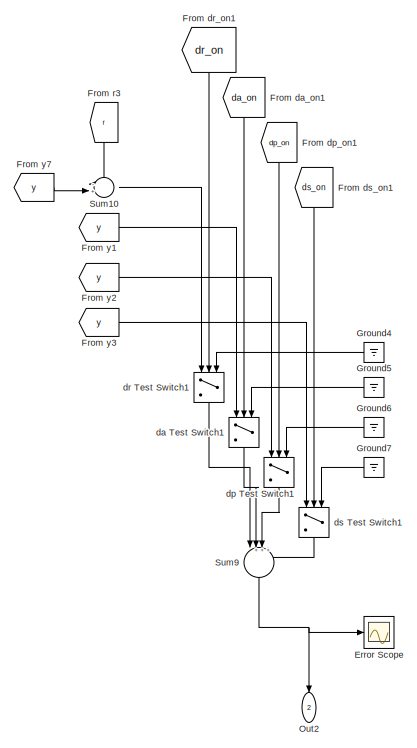
[diagram: root canvas - part 1/2, right side, full height]
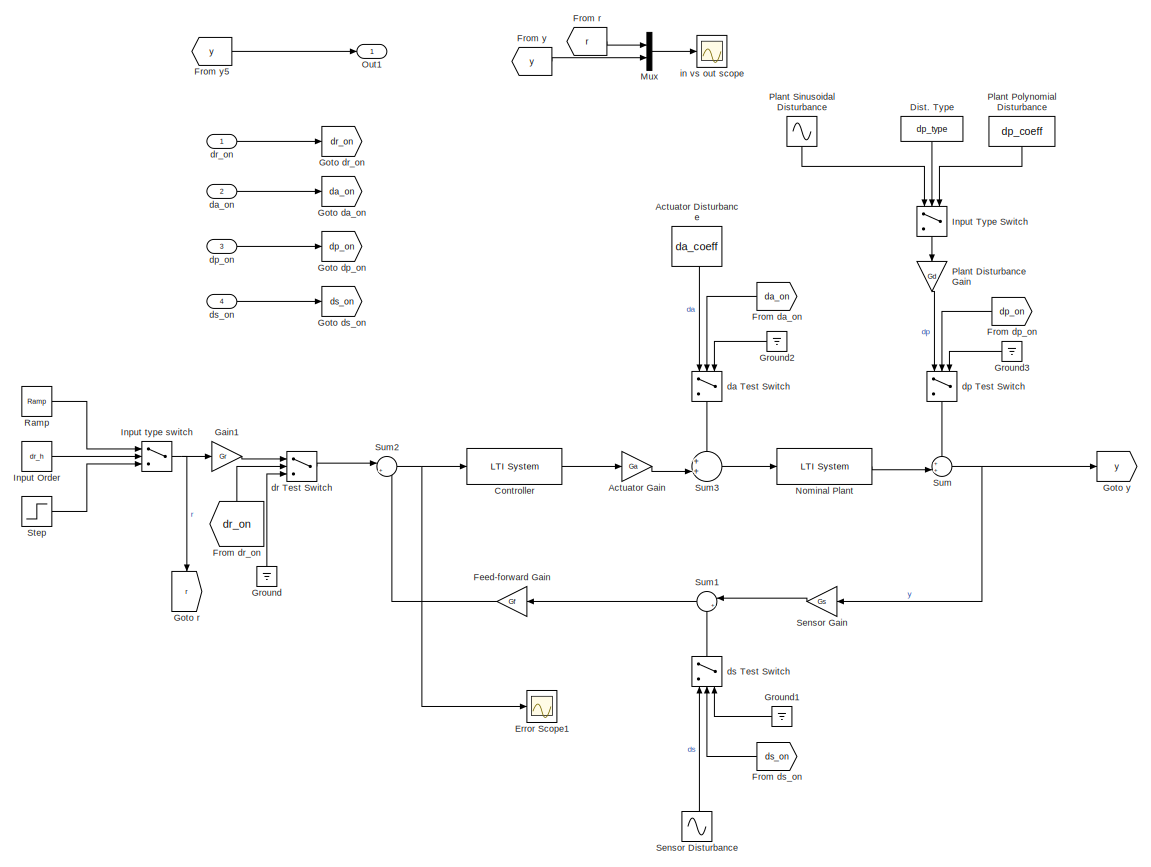
[diagram: root canvas - part 2/2, center side, full height]
MODEL system_model
KIND model
BLOCK [Constant] Actuator Disturbance
  SID = 21
  Value = da_coeff
BLOCK [Gain] Actuator Gain
  Gain = Ga
  OutDataTypeMode = Inherit via internal rule
  OutDataTypeStr = Inherit: Inherit via internal rule
  ParamDataTypeStr = Inherit: Inherit via internal rule
  ParameterDataTypeMode = Inherit via internal rule
  SID = 10
  SaturateOnIntegerOverflow = off
BLOCK [Reference] Controller  REF=cstblocks/LTI System
  FunctionWithSeparateData = off
  IC = []
  Ports = [1, 1]
  RTWMemSecDataConstants = Inherit from model
  RTWMemSecDataInternal = Inherit from model
  RTWMemSecDataParameters = Inherit from model
  RTWMemSecFuncExecute = Inherit from model
  RTWMemSecFuncInitTerm = Inherit from model
  SID = 1
  ShowPortLabels = FromPortIcon
  SourceBlock = cstblocks/LTI System
  SourceType = LTI Block
  SystemSampleTime = -1
  sys = Gcmod
BLOCK [Constant] Dist. Type
  SID = 38
  Value = dp_type
BLOCK [Scope] Error Scope
  DataFormat = StructureWithTime
  Floating = off
  LimitDataPoints = off
  NumInputPorts = 1
  Ports = [1]
  SID = 109
  SampleInput = on
  SampleTime = 0
  SaveName = ScopeData3
  TimeRange = 0.5
  YMax = 2.5
  YMin = 0
BLOCK [Scope] Error Scope1
  DataFormat = StructureWithTime
  Floating = off
  LimitDataPoints = off
  NumInputPorts = 1
  Ports = [1]
  SID = 178
  SampleInput = on
  SampleTime = 0
  SaveName = ScopeData1
  TimeRange = 0.5
  YMax = 2.5
  YMin = 0
BLOCK [Gain] Feed-forward Gain
  Gain = Gf
  OutDataTypeMode = Inherit via internal rule
  OutDataTypeStr = Inherit: Inherit via internal rule
  ParamDataTypeStr = Inherit: Inherit via internal rule
  ParameterDataTypeMode = Inherit via internal rule
  SID = 13
  SaturateOnIntegerOverflow = off
BLOCK [From] From da_on
  GotoTag = da_on
  SID = 97
BLOCK [From] From da_on1
  GotoTag = da_on
  SID = 117
BLOCK [From] From dp_on
  GotoTag = dp_on
  SID = 98
BLOCK [From] From dp_on1
  GotoTag = dp_on
  SID = 118
BLOCK [From] From dr_on
  GotoTag = dr_on
  SID = 95
BLOCK [From] From dr_on1
  GotoTag = dr_on
  SID = 116
BLOCK [From] From ds_on
  GotoTag = ds_on
  SID = 96
BLOCK [From] From ds_on1
  GotoTag = ds_on
  SID = 119
BLOCK [From] From r
  GotoTag = r
  SID = 52
BLOCK [From] From r3
  GotoTag = r
  SID = 174
BLOCK [From] From y
  GotoTag = y
  SID = 54
BLOCK [From] From y1
  GotoTag = y
  SID = 127
BLOCK [From] From y2
  GotoTag = y
  SID = 128
BLOCK [From] From y3
  GotoTag = y
  SID = 130
BLOCK [From] From y5
  GotoTag = y
  SID = 79
BLOCK [From] From y7
  GotoTag = y
  SID = 172
BLOCK [Gain] Gain1
  Gain = Gr
  OutDataTypeMode = Inherit via internal rule
  OutDataTypeStr = Inherit: Inherit via internal rule
  ParamDataTypeStr = Inherit: Inherit via internal rule
  ParameterDataTypeMode = Inherit via internal rule
  SID = 11
  SaturateOnIntegerOverflow = off
BLOCK [Goto] Goto da_on
  GotoTag = da_on
  SID = 100
  TagVisibility = local
BLOCK [Goto] Goto dp_on
  GotoTag = dp_on
  SID = 101
  TagVisibility = local
BLOCK [Goto] Goto dr_on
  GotoTag = dr_on
  SID = 99
  TagVisibility = local
BLOCK [Goto] Goto ds_on
  GotoTag = ds_on
  SID = 102
  TagVisibility = local
BLOCK [Goto] Goto r
  GotoTag = r
  SID = 51
  TagVisibility = local
BLOCK [Goto] Goto y
  GotoTag = y
  SID = 53
  TagVisibility = local
BLOCK [Ground] Ground
  SID = 136
BLOCK [Ground] Ground1
  SID = 137
BLOCK [Ground] Ground2
  SID = 138
BLOCK [Ground] Ground3
  SID = 139
BLOCK [Ground] Ground4
  SID = 140
BLOCK [Ground] Ground5
  SID = 141
BLOCK [Ground] Ground6
  SID = 142
BLOCK [Ground] Ground7
  SID = 143
BLOCK [Constant] Input Order
  SID = 32
  Value = dr_h
BLOCK [Switch] Input Type Switch
  InputSameDT = off
  SID = 30
  SaturateOnIntegerOverflow = off
  Threshold = 2
BLOCK [Switch] Input type switch
  InputSameDT = off
  SID = 26
  SaturateOnIntegerOverflow = off
  Threshold = 1
BLOCK [Mux] Mux
  DisplayOption = bar
  Inputs = 2
  Ports = [2, 1]
  SID = 23
BLOCK [Reference] Nominal Plant  REF=cstblocks/LTI System
  FunctionWithSeparateData = off
  IC = []
  Ports = [1, 1]
  RTWMemSecDataConstants = Inherit from model
  RTWMemSecDataInternal = Inherit from model
  RTWMemSecDataParameters = Inherit from model
  RTWMemSecFuncExecute = Inherit from model
  RTWMemSecFuncInitTerm = Inherit from model
  SID = 4
  ShowPortLabels = FromPortIcon
  SourceBlock = cstblocks/LTI System
  SourceType = LTI Block
  SystemSampleTime = -1
  sys = Gp_nominal
BLOCK [Outport] Out1
  IconDisplay = Port number
  OutDataType = fixdt(1, 16)
  OutScaling = 2^0
  SID = 80
BLOCK [Outport] Out2
  IconDisplay = Port number
  OutDataType = fixdt(1, 16)
  OutScaling = 2^0
  Port = 2
  SID = 131
BLOCK [Gain] Plant Disturbance Gain
  Gain = Gd
  OutDataTypeMode = Inherit via internal rule
  OutDataTypeStr = Inherit: Inherit via internal rule
  ParamDataTypeStr = Inherit: Inherit via internal rule
  ParameterDataTypeMode = Inherit via internal rule
  SID = 18
  SaturateOnIntegerOverflow = off
BLOCK [Constant] Plant Polynomial Disturbance
  SID = 24
  Value = dp_coeff
BLOCK [Sin] Plant Sinusoidal Disturbance
  Amplitude = dp_coeff
  Bias = 0
  Frequency = dp_freq
  Offset = 0
  Phase = 0
  Ports = [0, 1]
  SID = 20
  SampleTime = 0
  Samples = 10
BLOCK [Reference] Ramp  REF=simulink/Sources/Ramp
  FunctionWithSeparateData = off
  Ports = [0, 1]
  RTWMemSecDataConstants = Inherit from model
  RTWMemSecDataInternal = Inherit from model
  RTWMemSecDataParameters = Inherit from model
  RTWMemSecFuncExecute = Inherit from model
  RTWMemSecFuncInitTerm = Inherit from model
  SID = 22
  ShowPortLabels = FromPortIcon
  SourceBlock = simulink/Sources/Ramp
  SourceType = Ramp
  SystemSampleTime = -1
  VectorParams1D = on
  X0 = 0
  slope = dr_coeff
  start = 0
BLOCK [Sin] Sensor Disturbance
  Amplitude = ds_coeff
  Bias = 0
  Frequency = ds_freq
  Offset = 0
  Phase = 0
  Ports = [0, 1]
  SID = 19
  SampleTime = 0
  Samples = 10
BLOCK [Gain] Sensor Gain
  Gain = Gs
  OutDataTypeMode = Inherit via internal rule
  OutDataTypeStr = Inherit: Inherit via internal rule
  ParamDataTypeStr = Inherit: Inherit via internal rule
  ParameterDataTypeMode = Inherit via internal rule
  SID = 12
  SaturateOnIntegerOverflow = off
BLOCK [Step] Step
  After = dr_coeff
  SID = 9
  SampleTime = 0
  Time = 0
BLOCK [Sum] Sum
  IconShape = round
  InputSameDT = off
  Inputs = ++|
  OutDataTypeMode = Inherit via internal rule
  OutDataTypeStr = Inherit: Inherit via internal rule
  Ports = [2, 1]
  SID = 14
  SaturateOnIntegerOverflow = off
BLOCK [Sum] Sum1
  IconShape = round
  InputSameDT = off
  Inputs = |++
  OutDataTypeMode = Inherit via internal rule
  OutDataTypeStr = Inherit: Inherit via internal rule
  Ports = [2, 1]
  SID = 15
  SaturateOnIntegerOverflow = off
BLOCK [Sum] Sum10
  IconShape = round
  InputSameDT = off
  Inputs = -+|
  OutDataTypeMode = Inherit via internal rule
  OutDataTypeStr = Inherit: Inherit via internal rule
  Ports = [2, 1]
  SID = 173
  SaturateOnIntegerOverflow = off
BLOCK [Sum] Sum2
  IconShape = round
  InputSameDT = off
  Inputs = |+-
  OutDataTypeMode = Inherit via internal rule
  OutDataTypeStr = Inherit: Inherit via internal rule
  Ports = [2, 1]
  SID = 16
  SaturateOnIntegerOverflow = off
BLOCK [Sum] Sum3
  IconShape = round
  InputSameDT = off
  Inputs = ++|
  OutDataTypeMode = Inherit via internal rule
  OutDataTypeStr = Inherit: Inherit via internal rule
  Ports = [2, 1]
  SID = 17
  SaturateOnIntegerOverflow = off
BLOCK [Sum] Sum9
  IconShape = round
  InputSameDT = off
  Inputs = |++++
  OutDataType = fixdt(1, 16)
  OutDataTypeMode = Inherit via internal rule
  OutDataTypeStr = Inherit: Inherit via internal rule
  OutScaling = 2^0
  Ports = [4, 1]
  SID = 132
  SaturateOnIntegerOverflow = off
BLOCK [Switch] da Test Switch
  InputSameDT = off
  SID = 90
  SaturateOnIntegerOverflow = off
  Threshold = 1
BLOCK [Switch] da Test Switch1
  InputSameDT = off
  SID = 113
  SaturateOnIntegerOverflow = off
  Threshold = 1
BLOCK [Inport] da_on
  IconDisplay = Port number
  OutDataType = fixdt(1, 16)
  OutScaling = 2^0
  Port = 2
  SID = 106
BLOCK [Switch] dp Test Switch
  InputSameDT = off
  SID = 91
  SaturateOnIntegerOverflow = off
  Threshold = 1
BLOCK [Switch] dp Test Switch1
  InputSameDT = off
  SID = 114
  SaturateOnIntegerOverflow = off
  Threshold = 1
BLOCK [Inport] dp_on
  IconDisplay = Port number
  OutDataType = fixdt(1, 16)
  OutScaling = 2^0
  Port = 3
  SID = 105
BLOCK [Switch] dr Test Switch
  InputSameDT = off
  SID = 88
  SaturateOnIntegerOverflow = off
  Threshold = 1
BLOCK [Switch] dr Test Switch1
  InputSameDT = off
  SID = 112
  SaturateOnIntegerOverflow = off
  Threshold = 1
BLOCK [Inport] dr_on
  IconDisplay = Port number
  OutDataType = fixdt(1, 16)
  OutScaling = 2^0
  SID = 103
BLOCK [Switch] ds Test Switch
  InputSameDT = off
  SID = 89
  SaturateOnIntegerOverflow = off
  Threshold = 1
BLOCK [Switch] ds Test Switch1
  InputSameDT = off
  SID = 115
  SaturateOnIntegerOverflow = off
  Threshold = 1
BLOCK [Inport] ds_on
  IconDisplay = Port number
  OutDataType = fixdt(1, 16)
  OutScaling = 2^0
  Port = 4
  SID = 104
BLOCK [Scope] in vs out scope
  DataFormat = StructureWithTime
  Floating = off
  LimitDataPoints = off
  NumInputPorts = 1
  Ports = [1]
  SID = 8
  SampleInput = on
  SampleTime = 0
  TimeRange = 0.5
  YMax = 8.3
  YMin = 7.45
LINE Actuator Disturbance:1 -> da Test Switch:1
LINE Actuator Gain:1 -> Sum3:2
LINE Controller:1 -> Actuator Gain:1
LINE Dist. Type:1 -> Input Type Switch:2
LINE Feed-forward Gain:1 -> Sum2:2
LINE From da_on1:1 -> da Test Switch1:2
LINE From da_on:1 -> da Test Switch:2
LINE From dp_on1:1 -> dp Test Switch1:2
LINE From dp_on:1 -> dp Test Switch:2
LINE From dr_on1:1 -> dr Test Switch1:2
LINE From dr_on:1 -> dr Test Switch:2
LINE From ds_on1:1 -> ds Test Switch1:2
LINE From ds_on:1 -> ds Test Switch:2
LINE From r3:1 -> Sum10:1
LINE From r:1 -> Mux:1
LINE From y1:1 -> da Test Switch1:1
LINE From y2:1 -> dp Test Switch1:1
LINE From y3:1 -> ds Test Switch1:1
LINE From y5:1 -> Out1:1
LINE From y7:1 -> Sum10:2
LINE From y:1 -> Mux:2
LINE Gain1:1 -> dr Test Switch:1
LINE Ground1:1 -> ds Test Switch:3
LINE Ground2:1 -> da Test Switch:3
LINE Ground3:1 -> dp Test Switch:3
LINE Ground4:1 -> dr Test Switch1:3
LINE Ground5:1 -> da Test Switch1:3
LINE Ground6:1 -> dp Test Switch1:3
LINE Ground7:1 -> ds Test Switch1:3
LINE Ground:1 -> dr Test Switch:3
LINE Input Order:1 -> Input type switch:2
LINE Input Type Switch:1 -> Plant Disturbance Gain:1
NET Input type switch:1 -> Gain1:1, Goto r:1
LINE Mux:1 -> in vs out scope:1
LINE Nominal Plant:1 -> Sum:2
LINE Plant Disturbance Gain:1 -> dp Test Switch:1
LINE Plant Polynomial Disturbance:1 -> Input Type Switch:3
LINE Plant Sinusoidal Disturbance:1 -> Input Type Switch:1
LINE Ramp:1 -> Input type switch:1
LINE Sensor Disturbance:1 -> ds Test Switch:1
LINE Sensor Gain:1 -> Sum1:1
LINE Step:1 -> Input type switch:3
LINE Sum10:1 -> dr Test Switch1:1
LINE Sum1:1 -> Feed-forward Gain:1
NET Sum2:1 -> Controller:1, Error Scope1:1
LINE Sum3:1 -> Nominal Plant:1
NET Sum9:1 -> Error Scope:1, Out2:1
NET Sum:1 -> Goto y:1, Sensor Gain:1
LINE da Test Switch1:1 -> Sum9:2
LINE da Test Switch:1 -> Sum3:1
LINE da_on:1 -> Goto da_on:1
LINE dp Test Switch1:1 -> Sum9:3
LINE dp Test Switch:1 -> Sum:1
LINE dp_on:1 -> Goto dp_on:1
LINE dr Test Switch1:1 -> Sum9:1
LINE dr Test Switch:1 -> Sum2:1
LINE dr_on:1 -> Goto dr_on:1
LINE ds Test Switch1:1 -> Sum9:4
LINE ds Test Switch:1 -> Sum1:2
LINE ds_on:1 -> Goto ds_on:1
note: NET lines group one-source signal fan-out (src -> all destinations, sorted); 1:1 wires keep LINE
